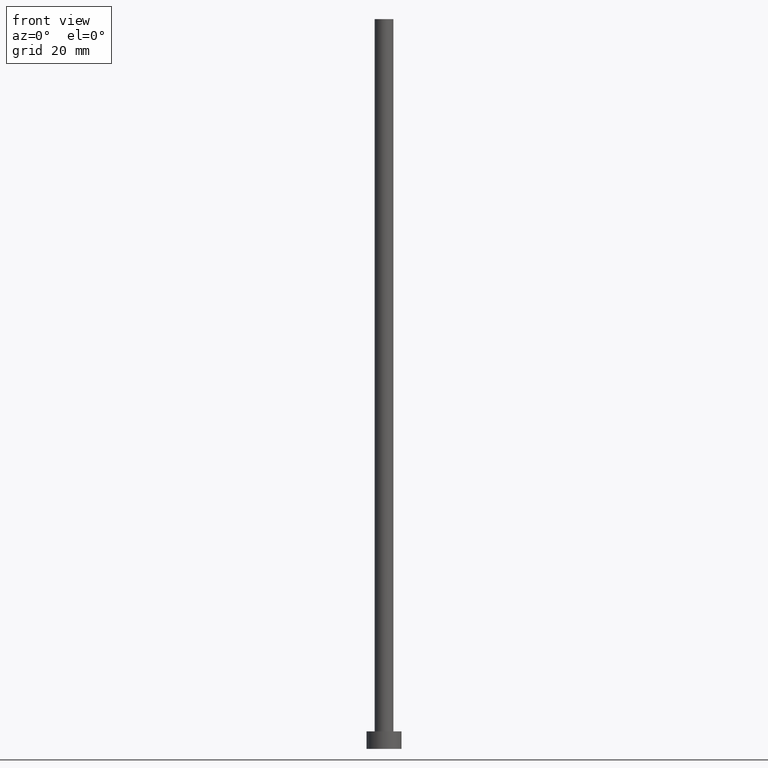
[diagram: clean part render]
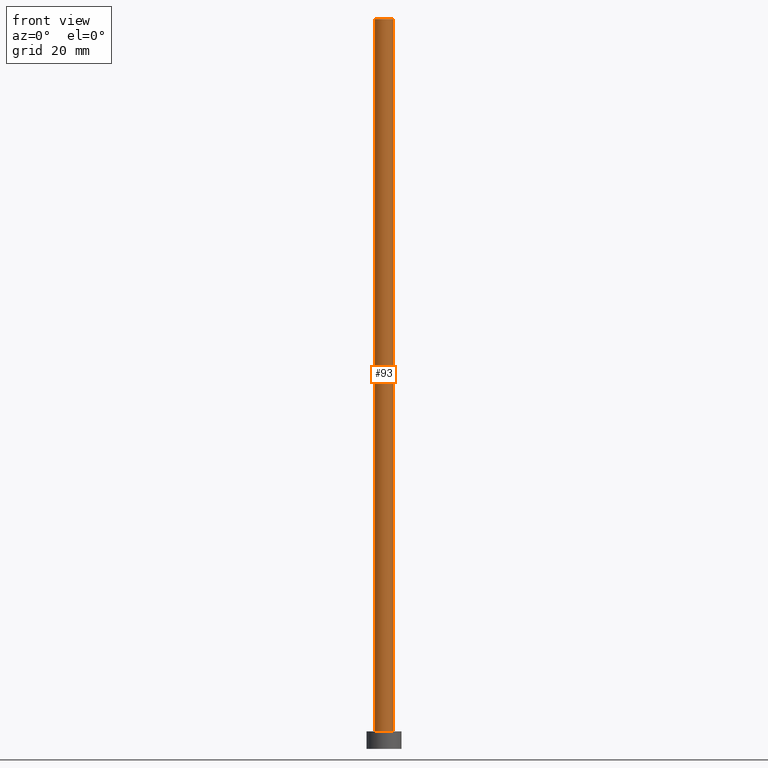
[diagram: same view with one face highlighted and labeled with its STEP entity id]
A machine part, front view. The second image highlights one B-rep face of the part: STEP entity #93.
In plain terms, the highlighted cylindrical surface (edge-blend (fillet) strip) has radius 1.6 mm, axis along (-0, -0, -1).
Its self-contained STEP definition (entity closure, byte-faithful):
#10 = DIRECTION ( 'NONE',  ( 0.000000000000000000, 0.000000000000000000, 1.000000000000000000 ) ) ;
#31 = CARTESIAN_POINT ( 'NONE',  ( 0.000000000000000000, 0.000000000000000000, 125.0000000000000000 ) ) ;
#37 = DIRECTION ( 'NONE',  ( -0.000000000000000000, -0.000000000000000000, -1.000000000000000000 ) ) ;
#40 = CARTESIAN_POINT ( 'NONE',  ( 1.600000000000000089, 1.959434878635764737E-16, 125.0000000000000000 ) ) ;
#49 = ORIENTED_EDGE ( 'NONE', *, *, #76, .F. ) ;
#50 = DIRECTION ( 'NONE',  ( -0.000000000000000000, -0.000000000000000000, -1.000000000000000000 ) ) ;
#51 = EDGE_CURVE ( 'NONE', #192, #96, #143, .T. ) ;
#52 = CARTESIAN_POINT ( 'NONE',  ( -1.600000000000000089, 0.000000000000000000, 3.000000000000000000 ) ) ;
#54 = CYLINDRICAL_SURFACE ( 'NONE', #120, 1.600000000000000089 ) ;
#55 = CIRCLE ( 'NONE', #59, 1.600000000000000089 ) ;
#59 = AXIS2_PLACEMENT_3D ( 'NONE', #205, #10, #126 ) ;
#66 = VECTOR ( 'NONE', #37, 1000.000000000000000 ) ;
#67 = DIRECTION ( 'NONE',  ( 0.000000000000000000, 0.000000000000000000, 1.000000000000000000 ) ) ;
#70 = EDGE_CURVE ( 'NONE', #96, #122, #179, .T. ) ;
#71 = CARTESIAN_POINT ( 'NONE',  ( 1.600000000000000089, 1.959434878635764737E-16, 3.000000000000000000 ) ) ;
#76 = EDGE_CURVE ( 'NONE', #192, #173, #55, .T. ) ;
#88 = DIRECTION ( 'NONE',  ( -1.000000000000000000, 0.000000000000000000, 0.000000000000000000 ) ) ;
#93 = ADVANCED_FACE ( 'NONE', ( #206 ), #54, .T. ) ;
#96 = VERTEX_POINT ( 'NONE', #52 ) ;
#114 = CARTESIAN_POINT ( 'NONE',  ( -1.600000000000000089, 0.000000000000000000, 125.0000000000000000 ) ) ;
#120 = AXIS2_PLACEMENT_3D ( 'NONE', #31, #50, #88 ) ;
#122 = VERTEX_POINT ( 'NONE', #71 ) ;
#126 = DIRECTION ( 'NONE',  ( 1.000000000000000000, 0.000000000000000000, 0.000000000000000000 ) ) ;
#127 = DIRECTION ( 'NONE',  ( 1.000000000000000000, 0.000000000000000000, 0.000000000000000000 ) ) ;
#143 = LINE ( 'NONE', #236, #196 ) ;
#173 = VERTEX_POINT ( 'NONE', #40 ) ;
#176 = ORIENTED_EDGE ( 'NONE', *, *, #197, .F. ) ;
#177 = DIRECTION ( 'NONE',  ( -0.000000000000000000, -0.000000000000000000, -1.000000000000000000 ) ) ;
#179 = CIRCLE ( 'NONE', #202, 1.600000000000000089 ) ;
#192 = VERTEX_POINT ( 'NONE', #114 ) ;
#196 = VECTOR ( 'NONE', #177, 1000.000000000000000 ) ;
#197 = EDGE_CURVE ( 'NONE', #173, #122, #209, .T. ) ;
#201 = ORIENTED_EDGE ( 'NONE', *, *, #70, .T. ) ;
#202 = AXIS2_PLACEMENT_3D ( 'NONE', #238, #67, #127 ) ;
#205 = CARTESIAN_POINT ( 'NONE',  ( 0.000000000000000000, 0.000000000000000000, 125.0000000000000000 ) ) ;
#206 = FACE_OUTER_BOUND ( 'NONE', #222, .T. ) ;
#209 = LINE ( 'NONE', #249, #66 ) ;
#222 = EDGE_LOOP ( 'NONE', ( #176, #49, #233, #201 ) ) ;
#233 = ORIENTED_EDGE ( 'NONE', *, *, #51, .T. ) ;
#236 = CARTESIAN_POINT ( 'NONE',  ( -1.600000000000000089, 0.000000000000000000, 125.0000000000000000 ) ) ;
#238 = CARTESIAN_POINT ( 'NONE',  ( 0.000000000000000000, 0.000000000000000000, 3.000000000000000000 ) ) ;
#249 = CARTESIAN_POINT ( 'NONE',  ( 1.600000000000000089, 1.959434878635764737E-16, 125.0000000000000000 ) ) ;